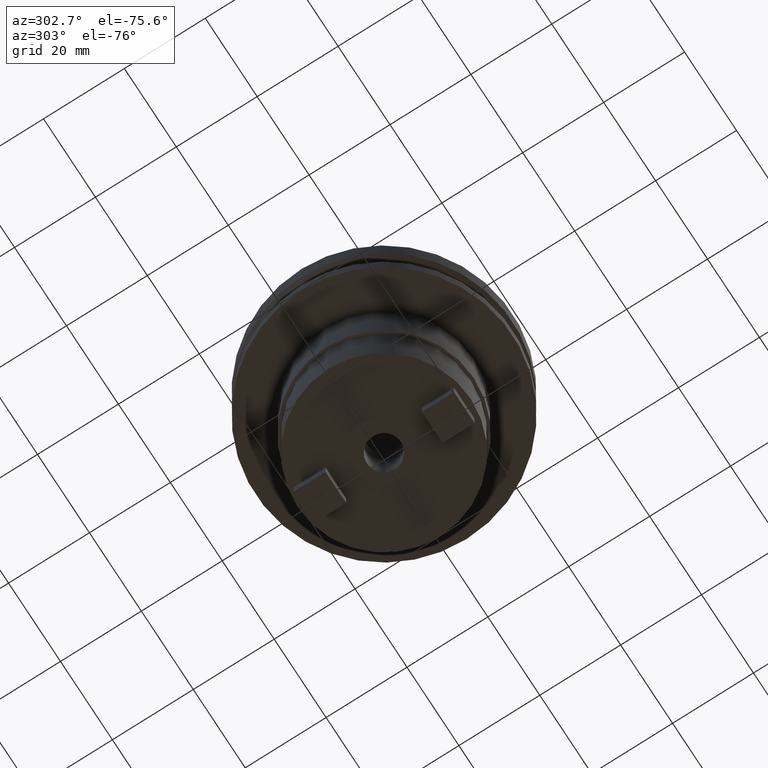
[diagram: clean part render]
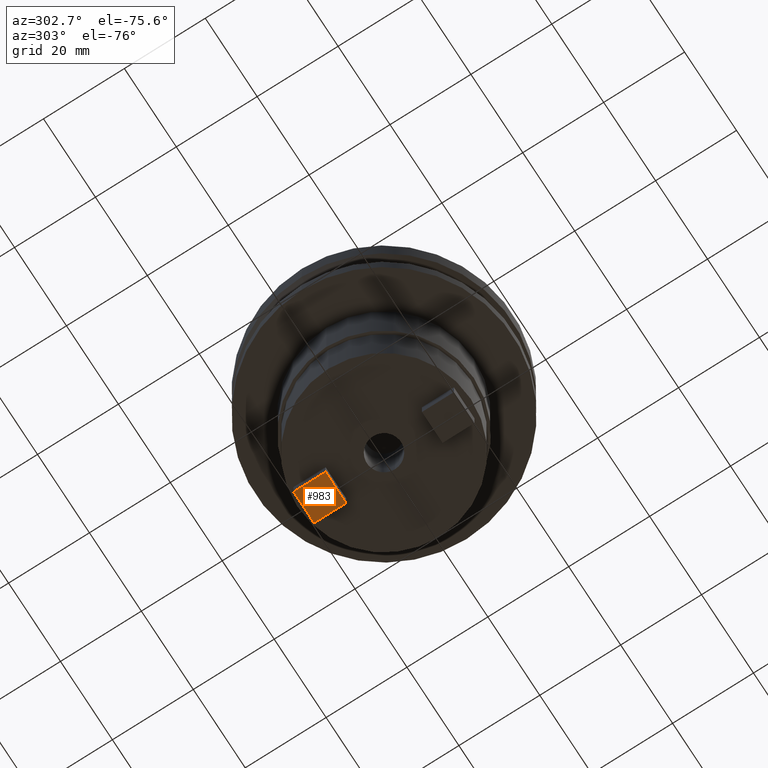
[diagram: same view with one face highlighted and labeled with its STEP entity id]
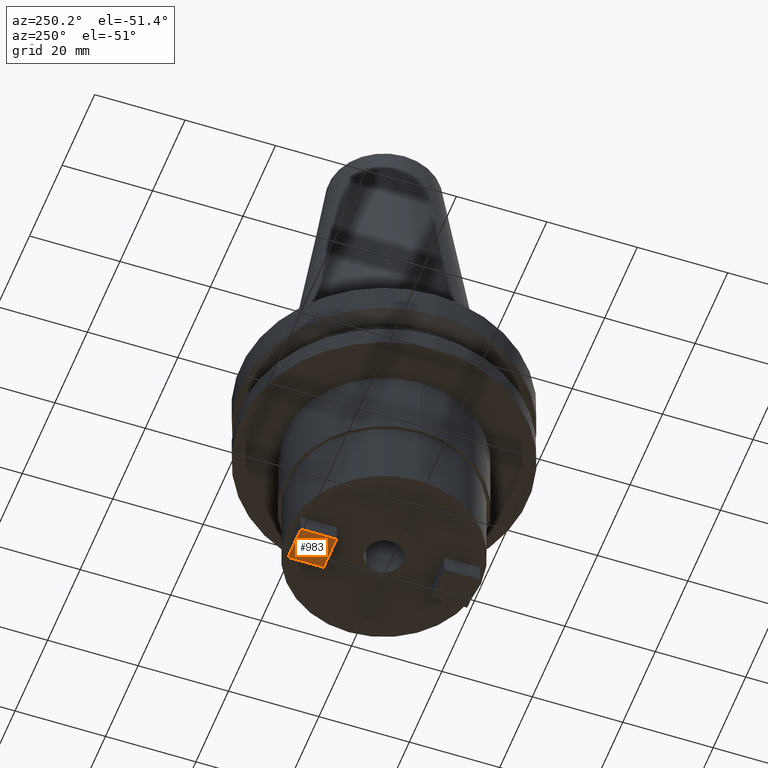
[diagram: same view with one face highlighted and labeled with its STEP entity id]
A machine part, auxiliary view. The second image highlights one B-rep face of the part: STEP entity #983.
A second angle (auxiliary view) of the same face is appended — the face is thin or edge-on in the first view.
In plain terms, the highlighted planar face has unit normal (-0, 0, -1).
Its self-contained STEP definition (entity closure, byte-faithful):
#8 = CARTESIAN_POINT ( 'NONE',  ( 3.964999999999995417, 19.84000000000000341, -54.76999999999999602 ) ) ;
#9 = CARTESIAN_POINT ( 'NONE',  ( 3.964999999999995417, 11.91000000000000192, -54.76999999999999602 ) ) ;
#106 = ORIENTED_EDGE ( 'NONE', *, *, #212, .T. ) ;
#109 = VERTEX_POINT ( 'NONE', #513 ) ;
#115 = AXIS2_PLACEMENT_3D ( 'NONE', #733, #913, #1061 ) ;
#124 = ORIENTED_EDGE ( 'NONE', *, *, #1025, .T. ) ;
#162 = DIRECTION ( 'NONE',  ( 1.000000000000000000, -0.000000000000000000, -0.000000000000000000 ) ) ;
#193 = EDGE_LOOP ( 'NONE', ( #124, #778, #957, #106 ) ) ;
#203 = LINE ( 'NONE', #374, #1040 ) ;
#212 = EDGE_CURVE ( 'NONE', #659, #561, #934, .T. ) ;
#275 = VECTOR ( 'NONE', #162, 1000.000000000000000 ) ;
#345 = CARTESIAN_POINT ( 'NONE',  ( -3.965000000000004299, 19.84000000000000341, -54.76999999999999602 ) ) ;
#374 = CARTESIAN_POINT ( 'NONE',  ( 3.964999999999995417, 19.84000000000000341, -54.76999999999999602 ) ) ;
#423 = LINE ( 'NONE', #8, #275 ) ;
#441 = CARTESIAN_POINT ( 'NONE',  ( 3.964999999999995417, 11.91000000000000192, -54.76999999999999602 ) ) ;
#478 = CARTESIAN_POINT ( 'NONE',  ( -3.965000000000004299, 11.91000000000000192, -54.76999999999999602 ) ) ;
#513 = CARTESIAN_POINT ( 'NONE',  ( -3.965000000000004299, 19.84000000000000341, -54.76999999999999602 ) ) ;
#561 = VERTEX_POINT ( 'NONE', #478 ) ;
#565 = VERTEX_POINT ( 'NONE', #898 ) ;
#652 = FACE_OUTER_BOUND ( 'NONE', #193, .T. ) ;
#659 = VERTEX_POINT ( 'NONE', #9 ) ;
#716 = DIRECTION ( 'NONE',  ( 0.000000000000000000, -1.000000000000000000, 0.000000000000000000 ) ) ;
#733 = CARTESIAN_POINT ( 'NONE',  ( 0.000000000000000000, 0.000000000000000000, -54.76999999999999602 ) ) ;
#768 = DIRECTION ( 'NONE',  ( -1.000000000000000000, 0.000000000000000000, 0.000000000000000000 ) ) ;
#778 = ORIENTED_EDGE ( 'NONE', *, *, #1087, .T. ) ;
#809 = PLANE ( 'NONE',  #115 ) ;
#865 = EDGE_CURVE ( 'NONE', #565, #659, #203, .T. ) ;
#872 = VECTOR ( 'NONE', #1085, 1000.000000000000000 ) ;
#898 = CARTESIAN_POINT ( 'NONE',  ( 3.964999999999995417, 19.84000000000000341, -54.76999999999999602 ) ) ;
#913 = DIRECTION ( 'NONE',  ( -0.000000000000000000, 0.000000000000000000, -1.000000000000000000 ) ) ;
#934 = LINE ( 'NONE', #441, #1006 ) ;
#935 = LINE ( 'NONE', #345, #872 ) ;
#957 = ORIENTED_EDGE ( 'NONE', *, *, #865, .T. ) ;
#983 = ADVANCED_FACE ( 'NONE', ( #652 ), #809, .T. ) ;
#1006 = VECTOR ( 'NONE', #768, 1000.000000000000000 ) ;
#1025 = EDGE_CURVE ( 'NONE', #561, #109, #935, .T. ) ;
#1040 = VECTOR ( 'NONE', #716, 1000.000000000000000 ) ;
#1061 = DIRECTION ( 'NONE',  ( -1.000000000000000000, 0.000000000000000000, 0.000000000000000000 ) ) ;
#1085 = DIRECTION ( 'NONE',  ( -0.000000000000000000, 1.000000000000000000, -0.000000000000000000 ) ) ;
#1087 = EDGE_CURVE ( 'NONE', #109, #565, #423, .T. ) ;